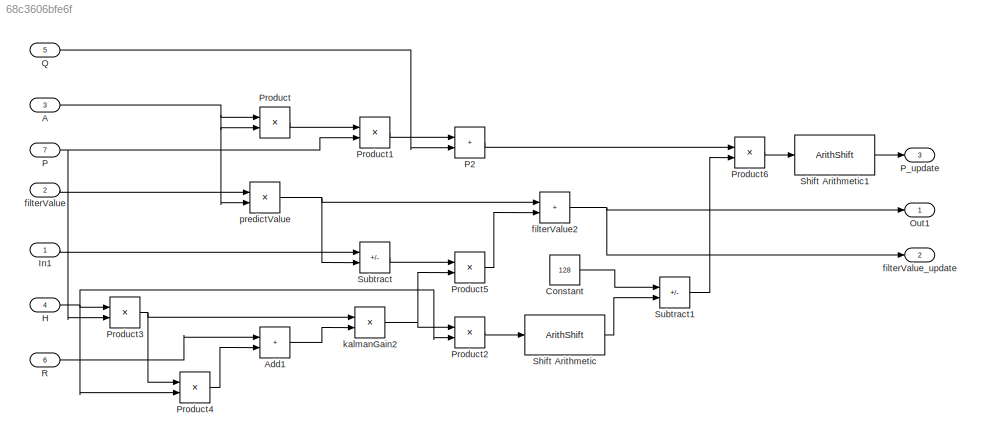
MODEL slx_68c3606bfe6f
KIND model
CONFIG AbsTol = auto
CONFIG EnableMultiTasking = off
CONFIG FixedStep = auto
CONFIG MaxStep = auto
CONFIG MinStep = auto
CONFIG RelTol = 1e-3
CONFIG SampleTimeConstraint = Unconstrained
CONFIG SolverName = FixedStepDiscrete
CONFIG StartTime = 0.0
CONFIG StopTime = 10
BLOCK [Inport] A
  OutDataTypeStr = int32
  Port = 3
  SignalType = real
BLOCK [Sum] Add1
  IconShape = rectangular
BLOCK [Constant] Constant
  OutDataTypeStr = int32
  Value = 128
BLOCK [Inport] H
  OutDataTypeStr = int32
  Port = 4
  SignalType = real
BLOCK [Inport] In1
  OutDataTypeStr = int32
  SignalType = real
BLOCK [Outport] Out1
BLOCK [Inport] P
  OutDataTypeStr = int32
  Port = 7
  SignalType = real
BLOCK [Sum] P2
  IconShape = rectangular
BLOCK [Outport] P_update
  Port = 3
BLOCK [Product] Product
  OutDataTypeStr = int32
  RndMeth = Simplest
BLOCK [Product] Product1
  OutDataTypeStr = int32
  RndMeth = Simplest
BLOCK [Product] Product2
  OutDataTypeStr = int32
  RndMeth = Simplest
BLOCK [Product] Product3
  OutDataTypeStr = int32
  RndMeth = Simplest
BLOCK [Product] Product4
  OutDataTypeStr = int32
  RndMeth = Simplest
BLOCK [Product] Product5
  OutDataTypeStr = int32
  RndMeth = Simplest
BLOCK [Product] Product6
  OutDataTypeStr = int32
  RndMeth = Simplest
BLOCK [Inport] Q
  OutDataTypeStr = int32
  Port = 5
  SignalType = real
BLOCK [Inport] R
  OutDataTypeStr = int32
  Port = 6
  SignalType = real
BLOCK [ArithShift] Shift Arithmetic
  BitShiftDirection = Left
  BitShiftNumber = 8
  InputPortMap = u0
BLOCK [ArithShift] Shift Arithmetic1
  BitShiftDirection = Right
  BitShiftNumber = 8
  InputPortMap = u0
BLOCK [Sum] Subtract
  IconShape = rectangular
  Inputs = +-
BLOCK [Sum] Subtract1
  IconShape = rectangular
  Inputs = +-
BLOCK [Inport] filterValue
  OutDataTypeStr = int32
  Port = 2
  SignalType = real
BLOCK [Sum] filterValue2
  IconShape = rectangular
BLOCK [Outport] filterValue_update
  Port = 2
BLOCK [Product] kalmanGain2
  Inputs = */
  OutDataTypeStr = int32
  RndMeth = Simplest
BLOCK [Product] predictValue
  OutDataTypeStr = int32
  RndMeth = Simplest
NET A:1 -> Product:1, Product:2, predictValue:2
LINE Add1:1 -> kalmanGain2:2
LINE Constant:1 -> Subtract1:1
NET H:1 -> Product2:2, Product3:1, Product4:2
LINE In1:1 -> Subtract:1
LINE P2:1 -> Product6:1
NET P:1 -> Product1:2, Product3:2
LINE Product1:1 -> P2:1
LINE Product2:1 -> Shift Arithmetic:1
NET Product3:1 -> Product4:1, kalmanGain2:1
LINE Product4:1 -> Add1:2
LINE Product5:1 -> filterValue2:2
LINE Product6:1 -> Shift Arithmetic1:1
LINE Product:1 -> Product1:1
LINE Q:1 -> P2:2
LINE R:1 -> Add1:1
LINE Shift Arithmetic1:1 -> P_update:1
LINE Shift Arithmetic:1 -> Subtract1:2
LINE Subtract1:1 -> Product6:2
LINE Subtract:1 -> Product5:1
NET filterValue2:1 -> Out1:1, filterValue_update:1
LINE filterValue:1 -> predictValue:1
NET kalmanGain2:1 -> Product2:1, Product5:2
NET predictValue:1 -> Subtract:2, filterValue2:1
note: NET lines group one-source signal fan-out (src -> all destinations, sorted); 1:1 wires keep LINE
